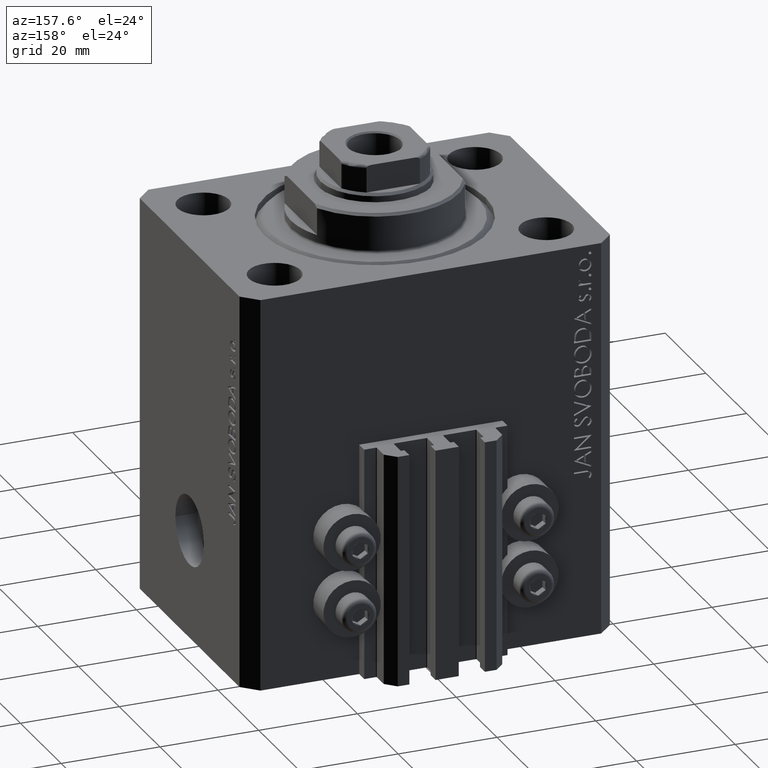
[diagram: clean part render]
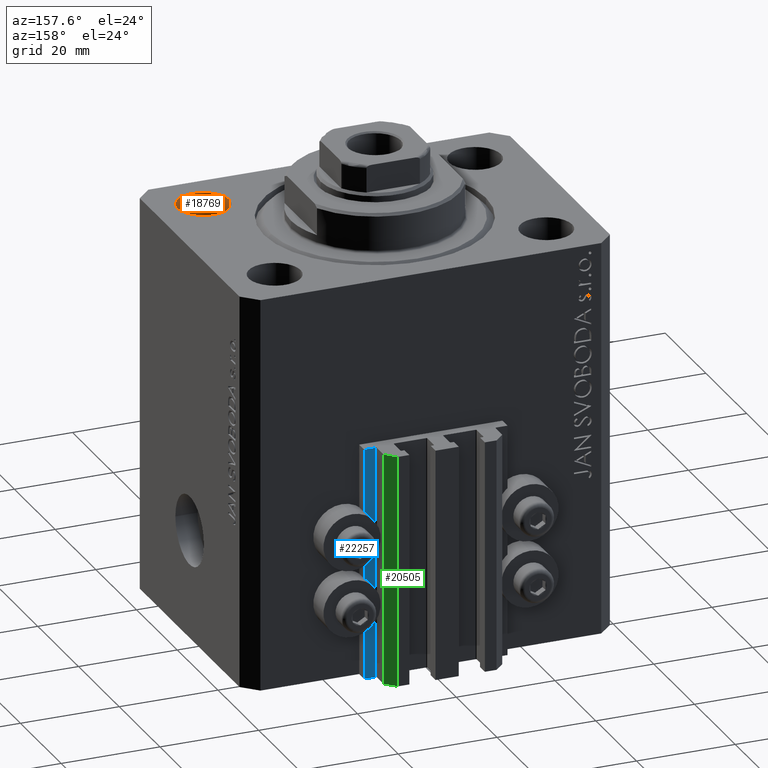
[diagram: same view with three faces highlighted in distinct colors, each labeled with its STEP entity id]
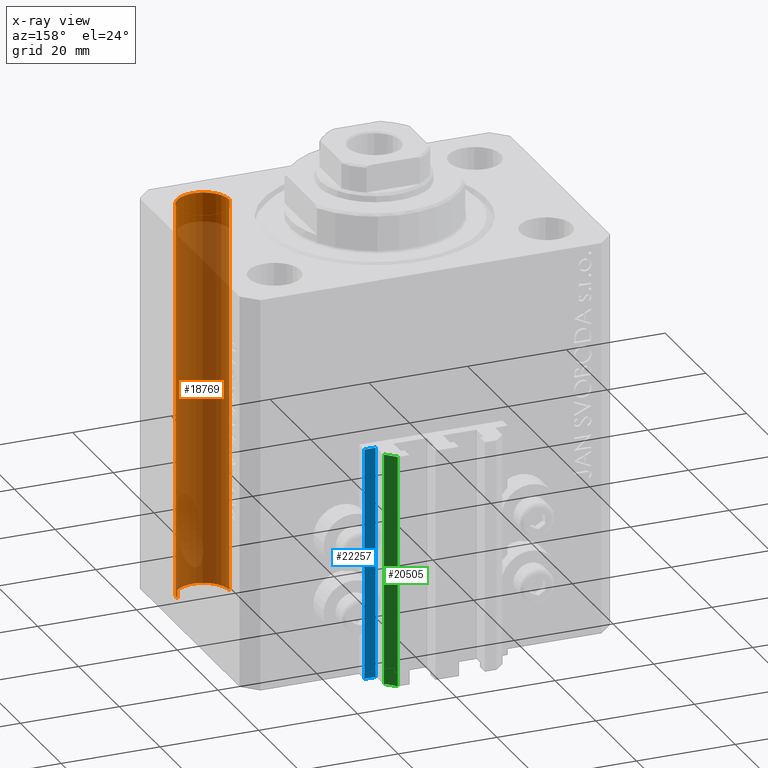
[diagram: x-ray of the same camera — body ghosted, the three highlighted faces saturated]
A machine part, auxiliary view with three faces highlighted in distinct colors.
The next image is the same camera in x-ray (body ghosted, the three faces saturated) — at least one of them is partly hidden behind the body in this view.
Their STEP definitions:

[orange] entity #18769 — the highlighted cylindrical surface (edge-blend (fillet) strip) has radius 5.25 mm, axis along (0, 0, 1).
#1848 = EDGE_CURVE ( 'NONE', #8497, #36558, #46691, .T. ) ;
#2388 = DIRECTION ( 'NONE',  ( 0.000000000000000000, 0.000000000000000000, 1.000000000000000000 ) ) ;
#6191 = ORIENTED_EDGE ( 'NONE', *, *, #44618, .T. ) ;
#7726 = CARTESIAN_POINT ( 'NONE',  ( 22.24999999999999289, -17.50000000000000000, -80.00000000000000000 ) ) ;
#8497 = VERTEX_POINT ( 'NONE', #26190 ) ;
#9305 = VECTOR ( 'NONE', #33420, 1000.000000000000000 ) ;
#9442 = VERTEX_POINT ( 'NONE', #19225 ) ;
#11886 = FACE_OUTER_BOUND ( 'NONE', #24680, .T. ) ;
#13431 = DIRECTION ( 'NONE',  ( 1.000000000000000000, 0.000000000000000000, 0.000000000000000000 ) ) ;
#15016 = ORIENTED_EDGE ( 'NONE', *, *, #38156, .F. ) ;
#18769 = ADVANCED_FACE ( 'NONE', ( #11886 ), #26530, .F. ) ;
#19225 = CARTESIAN_POINT ( 'NONE',  ( 32.74999999999999289, -17.50000000000000000, 0.000000000000000000 ) ) ;
#24680 = EDGE_LOOP ( 'NONE', ( #31644, #6191, #42521, #15016 ) ) ;
#24969 = VECTOR ( 'NONE', #45882, 1000.000000000000000 ) ;
#26190 = CARTESIAN_POINT ( 'NONE',  ( 32.74999999999999289, -17.50000000000000000, -80.00000000000000000 ) ) ;
#26530 = CYLINDRICAL_SURFACE ( 'NONE', #35221, 5.250000000000000888 ) ;
#27591 = CARTESIAN_POINT ( 'NONE',  ( 27.49999999999999289, -17.50000000000000000, 0.000000000000000000 ) ) ;
#27694 = CARTESIAN_POINT ( 'NONE',  ( 27.49999999999999289, -17.50000000000000000, -94.84924240491750425 ) ) ;
#28591 = CARTESIAN_POINT ( 'NONE',  ( 32.74999999999999289, -17.50000000000000000, -94.84924240491750425 ) ) ;
#29571 = LINE ( 'NONE', #44222, #9305 ) ;
#31059 = DIRECTION ( 'NONE',  ( -0.000000000000000000, -0.000000000000000000, 1.000000000000000000 ) ) ;
#31118 = AXIS2_PLACEMENT_3D ( 'NONE', #27591, #2388, #13431 ) ;
#31406 = CARTESIAN_POINT ( 'NONE',  ( 22.24999999999999289, -17.50000000000000000, 0.000000000000000000 ) ) ;
#31644 = ORIENTED_EDGE ( 'NONE', *, *, #1848, .T. ) ;
#33045 = DIRECTION ( 'NONE',  ( -0.000000000000000000, -0.000000000000000000, -1.000000000000000000 ) ) ;
#33420 = DIRECTION ( 'NONE',  ( -0.000000000000000000, -0.000000000000000000, 1.000000000000000000 ) ) ;
#35218 = AXIS2_PLACEMENT_3D ( 'NONE', #36652, #33045, #43857 ) ;
#35221 = AXIS2_PLACEMENT_3D ( 'NONE', #27694, #31059, #39878 ) ;
#36558 = VERTEX_POINT ( 'NONE', #7726 ) ;
#36652 = CARTESIAN_POINT ( 'NONE',  ( 27.49999999999999289, -17.50000000000000000, -80.00000000000000000 ) ) ;
#37210 = VERTEX_POINT ( 'NONE', #31406 ) ;
#38156 = EDGE_CURVE ( 'NONE', #8497, #9442, #42998, .T. ) ;
#39519 = EDGE_CURVE ( 'NONE', #37210, #9442, #46443, .T. ) ;
#39878 = DIRECTION ( 'NONE',  ( 1.000000000000000000, 0.000000000000000000, 0.000000000000000000 ) ) ;
#42521 = ORIENTED_EDGE ( 'NONE', *, *, #39519, .T. ) ;
#42998 = LINE ( 'NONE', #28591, #24969 ) ;
#43857 = DIRECTION ( 'NONE',  ( 1.000000000000000000, 0.000000000000000000, 0.000000000000000000 ) ) ;
#44222 = CARTESIAN_POINT ( 'NONE',  ( 22.24999999999999289, -17.50000000000000000, -94.84924240491750425 ) ) ;
#44618 = EDGE_CURVE ( 'NONE', #36558, #37210, #29571, .T. ) ;
#45882 = DIRECTION ( 'NONE',  ( -0.000000000000000000, -0.000000000000000000, 1.000000000000000000 ) ) ;
#46443 = CIRCLE ( 'NONE', #31118, 5.250000000000000888 ) ;
#46691 = CIRCLE ( 'NONE', #35218, 5.250000000000000888 ) ;

[blue] entity #22257 — the highlighted planar face has unit normal (0, 1, 0).
#507 = CARTESIAN_POINT ( 'NONE',  ( 12.20000000000000107, 30.00000000000002487, -80.00000000000000000 ) ) ;
#1049 = VERTEX_POINT ( 'NONE', #1779 ) ;
#1779 = CARTESIAN_POINT ( 'NONE',  ( 14.49999999999999645, 30.00000000000002487, -80.00000000000000000 ) ) ;
#3901 = AXIS2_PLACEMENT_3D ( 'NONE', #9996, #9526, #13610 ) ;
#5395 = CARTESIAN_POINT ( 'NONE',  ( 12.20000000000000107, 30.00000000000002487, -33.00000000000000000 ) ) ;
#6669 = CARTESIAN_POINT ( 'NONE',  ( 14.49999999999999645, 30.00000000000002487, -80.00000000000000000 ) ) ;
#7924 = EDGE_LOOP ( 'NONE', ( #24920, #31906, #19540, #21788 ) ) ;
#8460 = DIRECTION ( 'NONE',  ( -1.000000000000000000, 0.000000000000000000, 0.000000000000000000 ) ) ;
#9526 = DIRECTION ( 'NONE',  ( 0.000000000000000000, 1.000000000000000000, -0.000000000000000000 ) ) ;
#9996 = CARTESIAN_POINT ( 'NONE',  ( 14.49999999999999645, 30.00000000000002487, -80.00000000000000000 ) ) ;
#10853 = CARTESIAN_POINT ( 'NONE',  ( 14.49999999999999645, 30.00000000000002487, -33.00000000000000000 ) ) ;
#11365 = VERTEX_POINT ( 'NONE', #5395 ) ;
#12177 = LINE ( 'NONE', #31125, #45899 ) ;
#13009 = CARTESIAN_POINT ( 'NONE',  ( 12.20000000000000107, 30.00000000000002487, -80.00000000000000000 ) ) ;
#13610 = DIRECTION ( 'NONE',  ( 0.000000000000000000, 0.000000000000000000, 1.000000000000000000 ) ) ;
#15164 = DIRECTION ( 'NONE',  ( 0.000000000000000000, 0.000000000000000000, 1.000000000000000000 ) ) ;
#16710 = EDGE_CURVE ( 'NONE', #44596, #11365, #12177, .T. ) ;
#17226 = PLANE ( 'NONE',  #3901 ) ;
#17938 = FACE_OUTER_BOUND ( 'NONE', #7924, .T. ) ;
#18737 = VECTOR ( 'NONE', #21340, 1000.000000000000000 ) ;
#19401 = DIRECTION ( 'NONE',  ( -1.000000000000000000, 0.000000000000000000, 0.000000000000000000 ) ) ;
#19540 = ORIENTED_EDGE ( 'NONE', *, *, #34798, .T. ) ;
#21340 = DIRECTION ( 'NONE',  ( 0.000000000000000000, 0.000000000000000000, 1.000000000000000000 ) ) ;
#21788 = ORIENTED_EDGE ( 'NONE', *, *, #22731, .T. ) ;
#22257 = ADVANCED_FACE ( 'NONE', ( #17938 ), #17226, .T. ) ;
#22731 = EDGE_CURVE ( 'NONE', #31590, #11365, #26202, .T. ) ;
#24920 = ORIENTED_EDGE ( 'NONE', *, *, #16710, .F. ) ;
#25172 = LINE ( 'NONE', #6669, #18737 ) ;
#26202 = LINE ( 'NONE', #507, #44515 ) ;
#27610 = LINE ( 'NONE', #42259, #33307 ) ;
#31125 = CARTESIAN_POINT ( 'NONE',  ( 14.49999999999999645, 30.00000000000002487, -33.00000000000000000 ) ) ;
#31590 = VERTEX_POINT ( 'NONE', #13009 ) ;
#31906 = ORIENTED_EDGE ( 'NONE', *, *, #34630, .F. ) ;
#33307 = VECTOR ( 'NONE', #8460, 1000.000000000000000 ) ;
#34630 = EDGE_CURVE ( 'NONE', #1049, #44596, #25172, .T. ) ;
#34798 = EDGE_CURVE ( 'NONE', #1049, #31590, #27610, .T. ) ;
#42259 = CARTESIAN_POINT ( 'NONE',  ( 14.49999999999999645, 30.00000000000002487, -80.00000000000000000 ) ) ;
#44515 = VECTOR ( 'NONE', #15164, 1000.000000000000000 ) ;
#44596 = VERTEX_POINT ( 'NONE', #10853 ) ;
#45899 = VECTOR ( 'NONE', #19401, 1000.000000000000000 ) ;

[green] entity #20505 — the highlighted planar face has unit normal (0.7071, 0.7071, 0).
#1605 = VECTOR ( 'NONE', #34945, 1000.000000000000114 ) ;
#4763 = DIRECTION ( 'NONE',  ( -0.7071067811865474617, 0.7071067811865474617, 0.000000000000000000 ) ) ;
#6569 = DIRECTION ( 'NONE',  ( -0.7071067811865474617, 0.7071067811865474617, 0.000000000000000000 ) ) ;
#7500 = VERTEX_POINT ( 'NONE', #28561 ) ;
#8766 = LINE ( 'NONE', #38074, #1605 ) ;
#10970 = EDGE_CURVE ( 'NONE', #7500, #32553, #30029, .T. ) ;
#11074 = DIRECTION ( 'NONE',  ( 0.000000000000000000, 0.000000000000000000, 1.000000000000000000 ) ) ;
#12192 = LINE ( 'NONE', #29735, #46030 ) ;
#13788 = PLANE ( 'NONE',  #24559 ) ;
#13805 = CARTESIAN_POINT ( 'NONE',  ( 9.999999999999998224, 35.50000000000001421, -80.00000000000000000 ) ) ;
#17399 = FACE_OUTER_BOUND ( 'NONE', #26284, .T. ) ;
#17653 = DIRECTION ( 'NONE',  ( 0.000000000000000000, 0.000000000000000000, 1.000000000000000000 ) ) ;
#20361 = ORIENTED_EDGE ( 'NONE', *, *, #10970, .F. ) ;
#20505 = ADVANCED_FACE ( 'NONE', ( #17399 ), #13788, .T. ) ;
#20858 = VECTOR ( 'NONE', #17653, 1000.000000000000000 ) ;
#24404 = VERTEX_POINT ( 'NONE', #45284 ) ;
#24559 = AXIS2_PLACEMENT_3D ( 'NONE', #32275, #28427, #6569 ) ;
#26284 = EDGE_LOOP ( 'NONE', ( #46057, #20361, #45138, #32594 ) ) ;
#26430 = CARTESIAN_POINT ( 'NONE',  ( 12.00000000000000000, 33.50000000000001421, -80.00000000000000000 ) ) ;
#28427 = DIRECTION ( 'NONE',  ( 0.7071067811865475727, 0.7071067811865475727, -0.000000000000000000 ) ) ;
#28561 = CARTESIAN_POINT ( 'NONE',  ( 12.00000000000000000, 33.50000000000001421, -80.00000000000000000 ) ) ;
#28604 = CARTESIAN_POINT ( 'NONE',  ( 9.999999999999998224, 35.50000000000001421, -33.00000000000000000 ) ) ;
#29735 = CARTESIAN_POINT ( 'NONE',  ( 12.00000000000000000, 33.50000000000001421, -80.00000000000000000 ) ) ;
#30029 = LINE ( 'NONE', #26430, #32051 ) ;
#32051 = VECTOR ( 'NONE', #11074, 1000.000000000000000 ) ;
#32275 = CARTESIAN_POINT ( 'NONE',  ( 12.00000000000000000, 33.50000000000001421, -80.00000000000000000 ) ) ;
#32553 = VERTEX_POINT ( 'NONE', #41699 ) ;
#32594 = ORIENTED_EDGE ( 'NONE', *, *, #45086, .T. ) ;
#34945 = DIRECTION ( 'NONE',  ( -0.7071067811865474617, 0.7071067811865474617, 0.000000000000000000 ) ) ;
#36380 = LINE ( 'NONE', #13805, #20858 ) ;
#38074 = CARTESIAN_POINT ( 'NONE',  ( 12.00000000000000000, 33.50000000000001421, -33.00000000000000000 ) ) ;
#41253 = VERTEX_POINT ( 'NONE', #28604 ) ;
#41635 = EDGE_CURVE ( 'NONE', #7500, #24404, #12192, .T. ) ;
#41699 = CARTESIAN_POINT ( 'NONE',  ( 12.00000000000000000, 33.50000000000001421, -33.00000000000000000 ) ) ;
#42923 = EDGE_CURVE ( 'NONE', #32553, #41253, #8766, .T. ) ;
#45086 = EDGE_CURVE ( 'NONE', #24404, #41253, #36380, .T. ) ;
#45138 = ORIENTED_EDGE ( 'NONE', *, *, #41635, .T. ) ;
#45284 = CARTESIAN_POINT ( 'NONE',  ( 9.999999999999998224, 35.50000000000001421, -80.00000000000000000 ) ) ;
#46030 = VECTOR ( 'NONE', #4763, 1000.000000000000114 ) ;
#46057 = ORIENTED_EDGE ( 'NONE', *, *, #42923, .F. ) ;